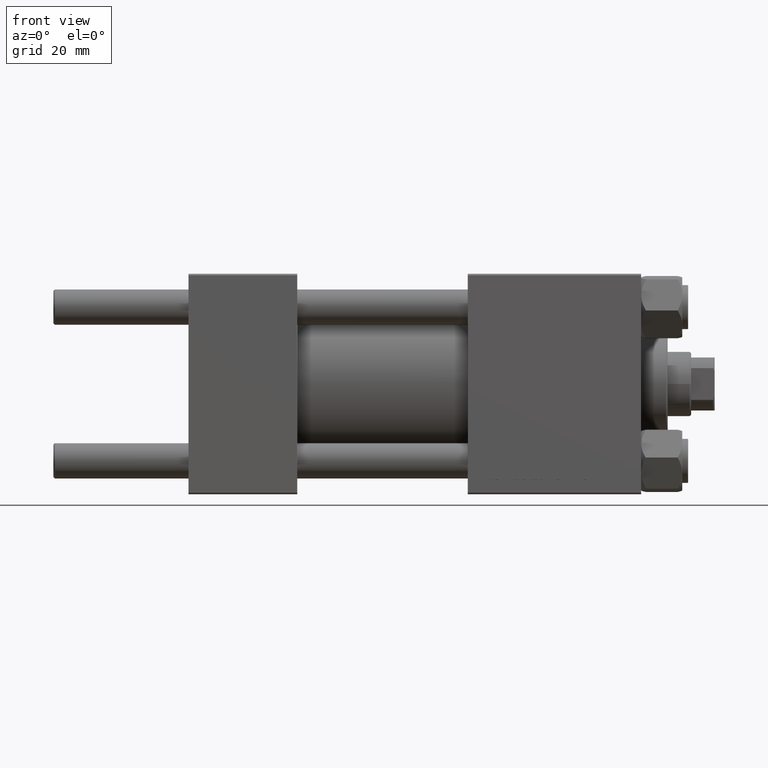
[diagram: clean part render]
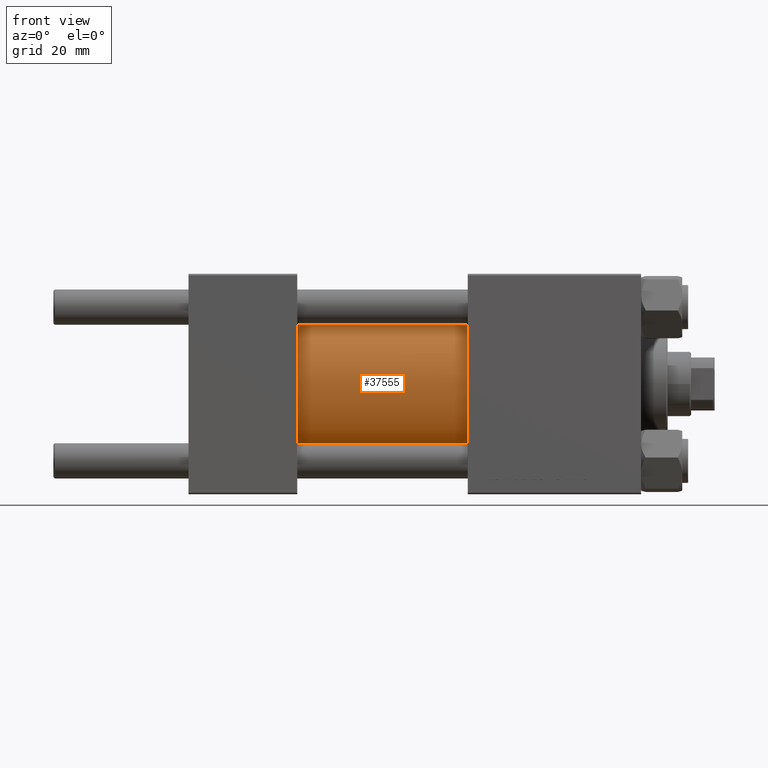
[diagram: same view with one face highlighted and labeled with its STEP entity id]
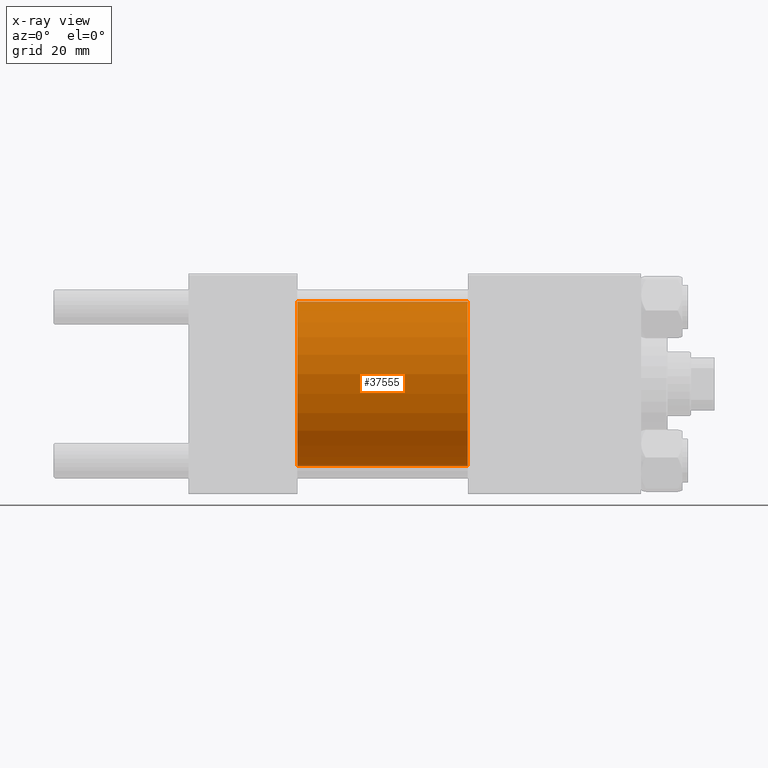
[diagram: x-ray of the same camera — body ghosted, the highlighted face saturated]
A machine part, front view. The second image highlights one B-rep face of the part: STEP entity #37555.
The next image is the same camera in x-ray: the body ghosted, the highlighted face saturated — about 2% of this face is hidden behind the body in this view.
In plain terms, the highlighted cylindrical surface (partial cylindrical patch) has radius 28 mm, axis along (-1, -0, -0).
Its self-contained STEP definition (entity closure, byte-faithful):
#321 = EDGE_LOOP ( 'NONE', ( #13224, #36032, #39814, #23282 ) ) ;
#872 = FACE_OUTER_BOUND ( 'NONE', #321, .T. ) ;
#7724 = LINE ( 'NONE', #22602, #38388 ) ;
#10106 = DIRECTION ( 'NONE',  ( 1.000000000000000000, -0.000000000000000000, 0.000000000000000000 ) ) ;
#12334 = CIRCLE ( 'NONE', #30830, 28.00000000000000000 ) ;
#13224 = ORIENTED_EDGE ( 'NONE', *, *, #38680, .F. ) ;
#13226 = DIRECTION ( 'NONE',  ( -1.000000000000000000, -0.000000000000000000, -0.000000000000000000 ) ) ;
#14120 = VECTOR ( 'NONE', #49391, 1000.000000000000000 ) ;
#16273 = CARTESIAN_POINT ( 'NONE',  ( 95.00000000000000000, 0.000000000000000000, 0.000000000000000000 ) ) ;
#16540 = AXIS2_PLACEMENT_3D ( 'NONE', #34167, #18537, #41236 ) ;
#16575 = CIRCLE ( 'NONE', #16540, 28.00000000000000000 ) ;
#17466 = CARTESIAN_POINT ( 'NONE',  ( 37.00000000000000000, 0.000000000000000000, 28.00000000000000000 ) ) ;
#18537 = DIRECTION ( 'NONE',  ( 1.000000000000000000, 0.000000000000000000, 0.000000000000000000 ) ) ;
#19005 = VERTEX_POINT ( 'NONE', #33020 ) ;
#20297 = CYLINDRICAL_SURFACE ( 'NONE', #43222, 28.00000000000000000 ) ;
#20535 = DIRECTION ( 'NONE',  ( 0.000000000000000000, 0.000000000000000000, 1.000000000000000000 ) ) ;
#21235 = CARTESIAN_POINT ( 'NONE',  ( 95.00000000000000000, 0.000000000000000000, 28.00000000000000000 ) ) ;
#21837 = VERTEX_POINT ( 'NONE', #30286 ) ;
#21886 = CARTESIAN_POINT ( 'NONE',  ( 95.00000000000000000, 0.000000000000000000, 28.00000000000000000 ) ) ;
#22602 = CARTESIAN_POINT ( 'NONE',  ( 95.00000000000000000, 3.429011037612588487E-15, -28.00000000000000000 ) ) ;
#23282 = ORIENTED_EDGE ( 'NONE', *, *, #46174, .T. ) ;
#26170 = LINE ( 'NONE', #21886, #14120 ) ;
#30286 = CARTESIAN_POINT ( 'NONE',  ( 95.00000000000000000, 3.429011037612588487E-15, -28.00000000000000000 ) ) ;
#30830 = AXIS2_PLACEMENT_3D ( 'NONE', #44680, #10106, #32794 ) ;
#32108 = EDGE_CURVE ( 'NONE', #32302, #21837, #16575, .T. ) ;
#32302 = VERTEX_POINT ( 'NONE', #21235 ) ;
#32794 = DIRECTION ( 'NONE',  ( 0.000000000000000000, 0.000000000000000000, 1.000000000000000000 ) ) ;
#33020 = CARTESIAN_POINT ( 'NONE',  ( 37.00000000000000000, 3.429011037612588487E-15, -28.00000000000000000 ) ) ;
#34167 = CARTESIAN_POINT ( 'NONE',  ( 95.00000000000000000, 0.000000000000000000, 0.000000000000000000 ) ) ;
#34770 = EDGE_CURVE ( 'NONE', #32302, #43537, #26170, .T. ) ;
#36032 = ORIENTED_EDGE ( 'NONE', *, *, #32108, .F. ) ;
#37555 = ADVANCED_FACE ( 'NONE', ( #872 ), #20297, .T. ) ;
#38388 = VECTOR ( 'NONE', #49866, 1000.000000000000000 ) ;
#38680 = EDGE_CURVE ( 'NONE', #21837, #19005, #7724, .T. ) ;
#39814 = ORIENTED_EDGE ( 'NONE', *, *, #34770, .T. ) ;
#41236 = DIRECTION ( 'NONE',  ( 0.000000000000000000, 0.000000000000000000, -1.000000000000000000 ) ) ;
#43222 = AXIS2_PLACEMENT_3D ( 'NONE', #16273, #13226, #20535 ) ;
#43537 = VERTEX_POINT ( 'NONE', #17466 ) ;
#44680 = CARTESIAN_POINT ( 'NONE',  ( 37.00000000000000000, 0.000000000000000000, 0.000000000000000000 ) ) ;
#46174 = EDGE_CURVE ( 'NONE', #43537, #19005, #12334, .T. ) ;
#49391 = DIRECTION ( 'NONE',  ( -1.000000000000000000, -0.000000000000000000, -0.000000000000000000 ) ) ;
#49866 = DIRECTION ( 'NONE',  ( -1.000000000000000000, -0.000000000000000000, -0.000000000000000000 ) ) ;